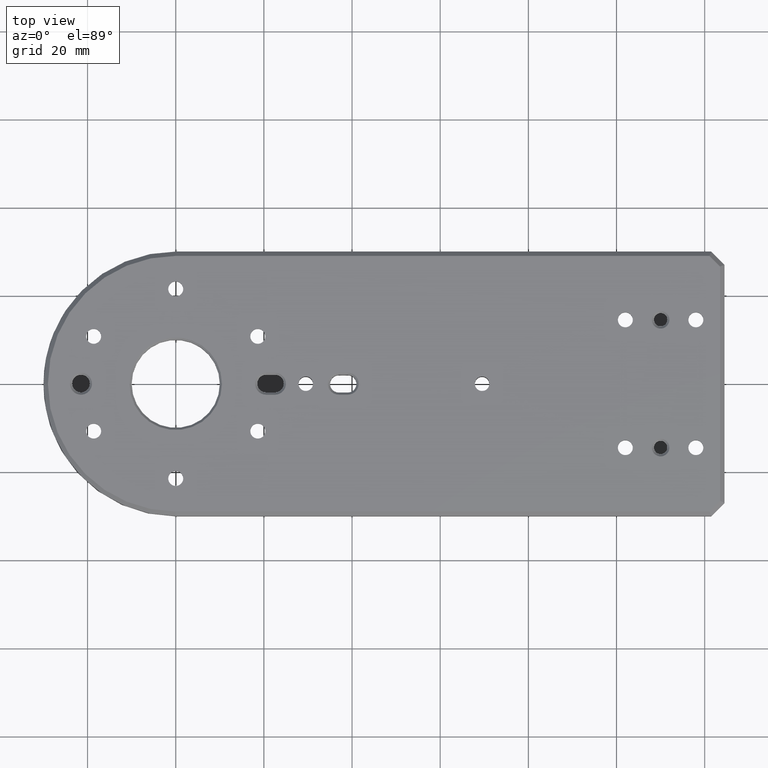
[diagram: clean part render]
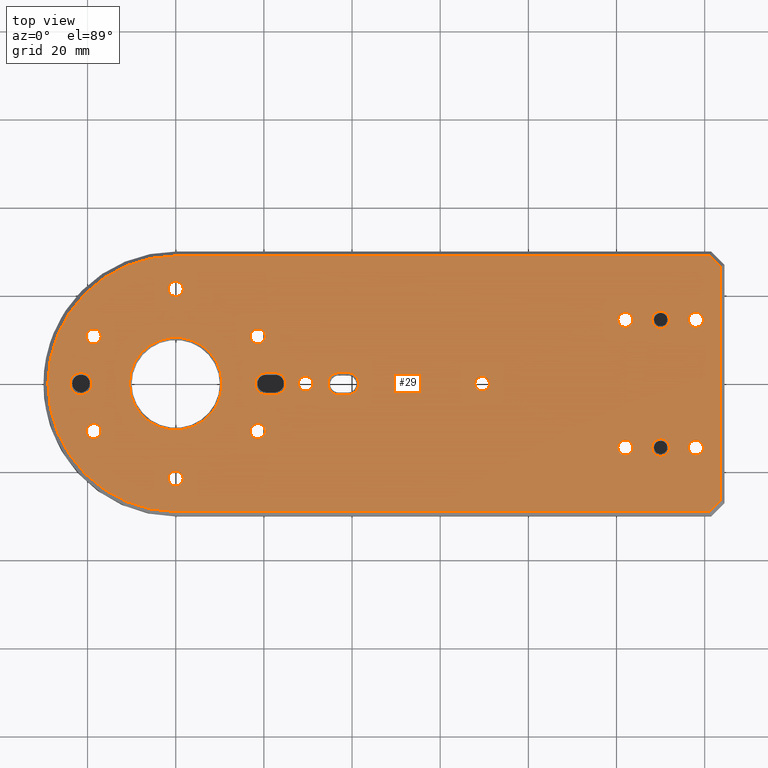
[diagram: same view with one face highlighted and labeled with its STEP entity id]
A machine part, top view. The second image highlights one B-rep face of the part: STEP entity #29.
In plain terms, the highlighted planar face has unit normal (0, 0, 1).
Its self-contained STEP definition (entity closure, byte-faithful):
#9 = CARTESIAN_POINT ( 'NONE',  ( -5.510910596163088767E-15, -28.99999999999999645, 0.0000000000000000000 ) ) ;
#17 = EDGE_CURVE ( 'NONE', #893, #3053, #1527, .T. ) ;
#19 = CIRCLE ( 'NONE', #2054, 1.699999999999996625 ) ;
#29 = ADVANCED_FACE ( 'NONE', ( #135, #154, #2661, #1273, #1864, #1802, #2129, #2921, #2357, #667, #2379, #3480, #3246, #412, #2642, #470, #2957, #1023, #1585 ), #982, .T. ) ;
#33 = CARTESIAN_POINT ( 'NONE',  ( 112.0000000000000000, -14.50000000000000000, 0.0000000000000000000 ) ) ;
#40 = CARTESIAN_POINT ( 'NONE',  ( 18.61954618136543615, -10.75000000000000000, 0.0000000000000000000 ) ) ;
#47 = AXIS2_PLACEMENT_3D ( 'NONE', #2413, #2662, #728 ) ;
#50 = VERTEX_POINT ( 'NONE', #1291 ) ;
#57 = CARTESIAN_POINT ( 'NONE',  ( 118.0000000000000000, 14.49999999999999822, 0.0000000000000000000 ) ) ;
#72 = LINE ( 'NONE', #1381, #1209 ) ;
#86 = VERTEX_POINT ( 'NONE', #1057 ) ;
#89 = CARTESIAN_POINT ( 'NONE',  ( 110.0000000000000142, 14.50000000000000000, 0.0000000000000000000 ) ) ;
#100 = DIRECTION ( 'NONE',  ( -1.000000000000000000, 0.0000000000000000000, 0.0000000000000000000 ) ) ;
#104 = CIRCLE ( 'NONE', #3253, 2.500000000000002220 ) ;
#109 = AXIS2_PLACEMENT_3D ( 'NONE', #89, #1185, #3226 ) ;
#111 = CARTESIAN_POINT ( 'NONE',  ( 1.734723475976807094E-15, -21.50000000000000355, 0.0000000000000000000 ) ) ;
#125 = ORIENTED_EDGE ( 'NONE', *, *, #1725, .T. ) ;
#128 = DIRECTION ( 'NONE',  ( 1.000000000000000000, 0.0000000000000000000, 0.0000000000000000000 ) ) ;
#129 = CIRCLE ( 'NONE', #362, 10.49999999999999467 ) ;
#130 = CARTESIAN_POINT ( 'NONE',  ( -10.49999999999999467, 1.285879139104720239E-15, 0.0000000000000000000 ) ) ;
#135 = FACE_BOUND ( 'NONE', #3269, .T. ) ;
#137 = EDGE_CURVE ( 'NONE', #1141, #1637, #1831, .T. ) ;
#144 = CARTESIAN_POINT ( 'NONE',  ( 123.5000000000000000, 26.58578643762689353, 0.0000000000000000000 ) ) ;
#146 = DIRECTION ( 'NONE',  ( -0.0000000000000000000, -0.0000000000000000000, -1.000000000000000000 ) ) ;
#154 = FACE_BOUND ( 'NONE', #2323, .T. ) ;
#156 = ORIENTED_EDGE ( 'NONE', *, *, #837, .T. ) ;
#158 = AXIS2_PLACEMENT_3D ( 'NONE', #2969, #3474, #3494 ) ;
#163 = VECTOR ( 'NONE', #1848, 1000.000000000000114 ) ;
#164 = EDGE_LOOP ( 'NONE', ( #874, #3340 ) ) ;
#170 = VERTEX_POINT ( 'NONE', #2198 ) ;
#171 = VERTEX_POINT ( 'NONE', #2792 ) ;
#185 = CARTESIAN_POINT ( 'NONE',  ( 123.5000000000000000, 0.0000000000000000000, 0.0000000000000000000 ) ) ;
#187 = CARTESIAN_POINT ( 'NONE',  ( 18.61954618136543615, -10.75000000000000000, 0.0000000000000000000 ) ) ;
#192 = VERTEX_POINT ( 'NONE', #1091 ) ;
#196 = ORIENTED_EDGE ( 'NONE', *, *, #3498, .T. ) ;
#205 = CARTESIAN_POINT ( 'NONE',  ( 38.99999999999998579, 2.500000000000000888, 0.0000000000000000000 ) ) ;
#206 = DIRECTION ( 'NONE',  ( -1.000000000000000000, 0.0000000000000000000, 0.0000000000000000000 ) ) ;
#208 = DIRECTION ( 'NONE',  ( -1.000000000000000000, 0.0000000000000000000, 0.0000000000000000000 ) ) ;
#225 = DIRECTION ( 'NONE',  ( -0.0000000000000000000, -0.0000000000000000000, -1.000000000000000000 ) ) ;
#243 = CARTESIAN_POINT ( 'NONE',  ( -1.699999999999998179, 21.50000000000000355, 0.0000000000000000000 ) ) ;
#247 = CARTESIAN_POINT ( 'NONE',  ( 103.6999999999999744, 14.49999999999999645, 0.0000000000000000000 ) ) ;
#249 = EDGE_CURVE ( 'NONE', #3035, #631, #19, .T. ) ;
#257 = CARTESIAN_POINT ( 'NONE',  ( 25.00000000000000000, -9.793179016008089977E-18, 0.0000000000000000000 ) ) ;
#267 = DIRECTION ( 'NONE',  ( -0.0000000000000000000, -0.0000000000000000000, -1.000000000000000000 ) ) ;
#282 = VERTEX_POINT ( 'NONE', #3080 ) ;
#307 = EDGE_CURVE ( 'NONE', #50, #1378, #903, .T. ) ;
#312 = CARTESIAN_POINT ( 'NONE',  ( 103.6999999999999744, -14.49999999999999645, 0.0000000000000000000 ) ) ;
#314 = VERTEX_POINT ( 'NONE', #9 ) ;
#325 = DIRECTION ( 'NONE',  ( 1.000000000000000000, 0.0000000000000000000, 0.0000000000000000000 ) ) ;
#331 = CARTESIAN_POINT ( 'NONE',  ( 37.00000000000002842, 0.0000000000000000000, 0.0000000000000000000 ) ) ;
#343 = DIRECTION ( 'NONE',  ( -1.000000000000000000, 0.0000000000000000000, 0.0000000000000000000 ) ) ;
#362 = AXIS2_PLACEMENT_3D ( 'NONE', #2617, #1234, #424 ) ;
#363 = CARTESIAN_POINT ( 'NONE',  ( 67.85000000000000853, 0.0000000000000000000, 0.0000000000000000000 ) ) ;
#379 = DIRECTION ( 'NONE',  ( -0.0000000000000000000, -0.0000000000000000000, -1.000000000000000000 ) ) ;
#380 = DIRECTION ( 'NONE',  ( -0.0000000000000000000, -0.0000000000000000000, -1.000000000000000000 ) ) ;
#383 = AXIS2_PLACEMENT_3D ( 'NONE', #2872, #379, #3510 ) ;
#387 = AXIS2_PLACEMENT_3D ( 'NONE', #1183, #943, #1987 ) ;
#392 = DIRECTION ( 'NONE',  ( -0.7071067811865491270, 0.7071067811865459074, 0.0000000000000000000 ) ) ;
#412 = FACE_BOUND ( 'NONE', #164, .T. ) ;
#414 = VERTEX_POINT ( 'NONE', #130 ) ;
#417 = ORIENTED_EDGE ( 'NONE', *, *, #2988, .T. ) ;
#420 = DIRECTION ( 'NONE',  ( 0.0000000000000000000, 0.0000000000000000000, 1.000000000000000000 ) ) ;
#424 = DIRECTION ( 'NONE',  ( 1.000000000000000000, 0.0000000000000000000, 0.0000000000000000000 ) ) ;
#432 = EDGE_CURVE ( 'NONE', #3151, #2040, #715, .T. ) ;
#434 = CARTESIAN_POINT ( 'NONE',  ( 119.6999999999999886, 14.49999999999999822, 0.0000000000000000000 ) ) ;
#450 = ORIENTED_EDGE ( 'NONE', *, *, #2138, .T. ) ;
#452 = AXIS2_PLACEMENT_3D ( 'NONE', #1539, #2367, #2083 ) ;
#459 = EDGE_CURVE ( 'NONE', #3327, #414, #129, .T. ) ;
#460 = AXIS2_PLACEMENT_3D ( 'NONE', #3369, #2826, #610 ) ;
#461 = DIRECTION ( 'NONE',  ( -1.000000000000000000, 0.0000000000000000000, 0.0000000000000000000 ) ) ;
#470 = FACE_BOUND ( 'NONE', #607, .T. ) ;
#501 = DIRECTION ( 'NONE',  ( 1.000000000000000000, 0.0000000000000000000, 0.0000000000000000000 ) ) ;
#503 = AXIS2_PLACEMENT_3D ( 'NONE', #2931, #420, #716 ) ;
#506 = VERTEX_POINT ( 'NONE', #2192 ) ;
#510 = DIRECTION ( 'NONE',  ( -0.0000000000000000000, -0.0000000000000000000, -1.000000000000000000 ) ) ;
#516 = ORIENTED_EDGE ( 'NONE', *, *, #17, .T. ) ;
#521 = ORIENTED_EDGE ( 'NONE', *, *, #2720, .T. ) ;
#525 = AXIS2_PLACEMENT_3D ( 'NONE', #1833, #1228, #970 ) ;
#541 = CARTESIAN_POINT ( 'NONE',  ( 1.699999999999998179, 21.50000000000000355, 0.0000000000000000000 ) ) ;
#581 = EDGE_CURVE ( 'NONE', #1637, #1141, #711, .T. ) ;
#594 = EDGE_CURVE ( 'NONE', #506, #1764, #2115, .T. ) ;
#607 = EDGE_LOOP ( 'NONE', ( #748, #2714 ) ) ;
#610 = DIRECTION ( 'NONE',  ( -1.000000000000000000, 0.0000000000000000000, 0.0000000000000000000 ) ) ;
#613 = ORIENTED_EDGE ( 'NONE', *, *, #808, .T. ) ;
#614 = DIRECTION ( 'NONE',  ( -0.0000000000000000000, -0.0000000000000000000, -1.000000000000000000 ) ) ;
#631 = VERTEX_POINT ( 'NONE', #3573 ) ;
#636 = CARTESIAN_POINT ( 'NONE',  ( 119.6999999999999886, -14.49999999999999822, 0.0000000000000000000 ) ) ;
#637 = EDGE_LOOP ( 'NONE', ( #613, #2997 ) ) ;
#667 = FACE_BOUND ( 'NONE', #1655, .T. ) ;
#681 = CIRCLE ( 'NONE', #2141, 1.699999999999998179 ) ;
#682 = EDGE_LOOP ( 'NONE', ( #3475, #156, #125, #2511, #521, #516, #3614 ) ) ;
#696 = DIRECTION ( 'NONE',  ( -0.0000000000000000000, -0.0000000000000000000, -1.000000000000000000 ) ) ;
#698 = ORIENTED_EDGE ( 'NONE', *, *, #3324, .T. ) ;
#702 = CARTESIAN_POINT ( 'NONE',  ( 20.49999999999999645, 2.500000000000000444, 0.0000000000000000000 ) ) ;
#711 = CIRCLE ( 'NONE', #1994, 1.699999999999993072 ) ;
#715 = CIRCLE ( 'NONE', #3225, 1.699999999999993072 ) ;
#716 = DIRECTION ( 'NONE',  ( 1.000000000000000000, 0.0000000000000000000, 0.0000000000000000000 ) ) ;
#720 = ORIENTED_EDGE ( 'NONE', *, *, #3390, .T. ) ;
#728 = DIRECTION ( 'NONE',  ( -1.000000000000000000, 0.0000000000000000000, 0.0000000000000000000 ) ) ;
#732 = LINE ( 'NONE', #1329, #163 ) ;
#744 = DIRECTION ( 'NONE',  ( 1.000000000000000000, 0.0000000000000000000, -0.0000000000000000000 ) ) ;
#747 = CIRCLE ( 'NONE', #1731, 1.699999999999996625 ) ;
#748 = ORIENTED_EDGE ( 'NONE', *, *, #432, .T. ) ;
#750 = CIRCLE ( 'NONE', #3371, 1.699999999999998179 ) ;
#754 = CIRCLE ( 'NONE', #460, 1.649999999999998579 ) ;
#765 = ORIENTED_EDGE ( 'NONE', *, *, #1593, .T. ) ;
#766 = DIRECTION ( 'NONE',  ( -1.000000000000000000, 0.0000000000000000000, 0.0000000000000000000 ) ) ;
#775 = DIRECTION ( 'NONE',  ( -0.0000000000000000000, -0.0000000000000000000, -1.000000000000000000 ) ) ;
#778 = EDGE_CURVE ( 'NONE', #3053, #2084, #3416, .T. ) ;
#799 = VERTEX_POINT ( 'NONE', #1155 ) ;
#802 = VERTEX_POINT ( 'NONE', #952 ) ;
#807 = AXIS2_PLACEMENT_3D ( 'NONE', #40, #1423, #1980 ) ;
#808 = EDGE_CURVE ( 'NONE', #802, #2543, #3539, .T. ) ;
#810 = CIRCLE ( 'NONE', #47, 1.699999999999996625 ) ;
#818 = EDGE_LOOP ( 'NONE', ( #3413, #2858 ) ) ;
#831 = DIRECTION ( 'NONE',  ( -1.000000000000000000, 0.0000000000000000000, 0.0000000000000000000 ) ) ;
#837 = EDGE_CURVE ( 'NONE', #171, #314, #2076, .T. ) ;
#847 = CARTESIAN_POINT ( 'NONE',  ( -18.99999999999999645, 0.0000000000000000000, 0.0000000000000000000 ) ) ;
#850 = DIRECTION ( 'NONE',  ( -1.000000000000000000, 0.0000000000000000000, 0.0000000000000000000 ) ) ;
#851 = CARTESIAN_POINT ( 'NONE',  ( -18.61954618136542550, 10.75000000000000178, 0.0000000000000000000 ) ) ;
#852 = ORIENTED_EDGE ( 'NONE', *, *, #2588, .T. ) ;
#871 = CARTESIAN_POINT ( 'NONE',  ( 37.00000000000002842, -2.500000000000000888, 0.0000000000000000000 ) ) ;
#874 = ORIENTED_EDGE ( 'NONE', *, *, #1309, .T. ) ;
#875 = VERTEX_POINT ( 'NONE', #363 ) ;
#893 = VERTEX_POINT ( 'NONE', #144 ) ;
#903 = LINE ( 'NONE', #871, #1948 ) ;
#911 = VERTEX_POINT ( 'NONE', #3204 ) ;
#917 = CARTESIAN_POINT ( 'NONE',  ( 0.0000000000000000000, 28.99999999999999645, 0.0000000000000000000 ) ) ;
#924 = CIRCLE ( 'NONE', #1330, 1.699999999999993072 ) ;
#935 = DIRECTION ( 'NONE',  ( 1.000000000000000000, 0.0000000000000000000, 0.0000000000000000000 ) ) ;
#943 = DIRECTION ( 'NONE',  ( -0.0000000000000000000, -0.0000000000000000000, -1.000000000000000000 ) ) ;
#952 = CARTESIAN_POINT ( 'NONE',  ( 116.2999999999999972, 14.49999999999999822, 0.0000000000000000000 ) ) ;
#962 = CARTESIAN_POINT ( 'NONE',  ( 22.50000000000000000, -9.793179016008089977E-18, 0.0000000000000000000 ) ) ;
#964 = ORIENTED_EDGE ( 'NONE', *, *, #3233, .T. ) ;
#970 = DIRECTION ( 'NONE',  ( -1.000000000000000000, 0.0000000000000000000, 0.0000000000000000000 ) ) ;
#980 = CIRCLE ( 'NONE', #1500, 28.99999999999999645 ) ;
#982 = PLANE ( 'NONE',  #1188 ) ;
#997 = DIRECTION ( 'NONE',  ( 1.000000000000000000, 0.0000000000000000000, 0.0000000000000000000 ) ) ;
#1003 = CARTESIAN_POINT ( 'NONE',  ( 75.04289321881313413, 75.04289321881348940, 0.0000000000000000000 ) ) ;
#1023 = FACE_BOUND ( 'NONE', #2161, .T. ) ;
#1047 = CARTESIAN_POINT ( 'NONE',  ( -18.61954618136542905, -10.75000000000001066, 0.0000000000000000000 ) ) ;
#1048 = VERTEX_POINT ( 'NONE', #3238 ) ;
#1052 = CARTESIAN_POINT ( 'NONE',  ( 38.99999999999998579, 3.673940397441985912E-16, 0.0000000000000000000 ) ) ;
#1054 = EDGE_LOOP ( 'NONE', ( #2068, #765 ) ) ;
#1057 = CARTESIAN_POINT ( 'NONE',  ( -24.00000000000000000, 3.061616997868386099E-16, 0.0000000000000000000 ) ) ;
#1058 = CIRCLE ( 'NONE', #2329, 10.49999999999999467 ) ;
#1061 = CIRCLE ( 'NONE', #3450, 1.699999999999993072 ) ;
#1065 = EDGE_CURVE ( 'NONE', #2868, #2270, #681, .T. ) ;
#1069 = DIRECTION ( 'NONE',  ( -1.000000000000000000, 0.0000000000000000000, 0.0000000000000000000 ) ) ;
#1075 = DIRECTION ( 'NONE',  ( 1.000000000000000000, 0.0000000000000000000, 0.0000000000000000000 ) ) ;
#1082 = CARTESIAN_POINT ( 'NONE',  ( 101.9999999999999858, -14.49999999999999645, 0.0000000000000000000 ) ) ;
#1088 = EDGE_CURVE ( 'NONE', #3265, #170, #1617, .T. ) ;
#1091 = CARTESIAN_POINT ( 'NONE',  ( 108.0000000000000284, 14.50000000000000000, 0.0000000000000000000 ) ) ;
#1099 = AXIS2_PLACEMENT_3D ( 'NONE', #962, #1292, #501 ) ;
#1107 = CARTESIAN_POINT ( 'NONE',  ( 100.2999999999999829, -14.49999999999999645, 0.0000000000000000000 ) ) ;
#1117 = AXIS2_PLACEMENT_3D ( 'NONE', #3239, #696, #935 ) ;
#1120 = EDGE_CURVE ( 'NONE', #875, #2070, #2602, .T. ) ;
#1129 = VERTEX_POINT ( 'NONE', #1198 ) ;
#1141 = VERTEX_POINT ( 'NONE', #636 ) ;
#1148 = EDGE_CURVE ( 'NONE', #2220, #1512, #1963, .T. ) ;
#1151 = AXIS2_PLACEMENT_3D ( 'NONE', #331, #2244, #1444 ) ;
#1155 = CARTESIAN_POINT ( 'NONE',  ( 100.2999999999999829, 14.49999999999999645, 0.0000000000000000000 ) ) ;
#1163 = ORIENTED_EDGE ( 'NONE', *, *, #2765, .T. ) ;
#1165 = DIRECTION ( 'NONE',  ( -0.0000000000000000000, -0.0000000000000000000, -1.000000000000000000 ) ) ;
#1183 = CARTESIAN_POINT ( 'NONE',  ( 29.50000000000000711, 0.0000000000000000000, 0.0000000000000000000 ) ) ;
#1185 = DIRECTION ( 'NONE',  ( -0.0000000000000000000, -0.0000000000000000000, -1.000000000000000000 ) ) ;
#1188 = AXIS2_PLACEMENT_3D ( 'NONE', #3230, #2897, #744 ) ;
#1198 = CARTESIAN_POINT ( 'NONE',  ( 112.0000000000000000, 14.50000000000000000, 0.0000000000000000000 ) ) ;
#1199 = ORIENTED_EDGE ( 'NONE', *, *, #1822, .T. ) ;
#1209 = VECTOR ( 'NONE', #1724, 1000.000000000000000 ) ;
#1212 = VECTOR ( 'NONE', #997, 1000.000000000000000 ) ;
#1213 = CIRCLE ( 'NONE', #1446, 1.699999999999998179 ) ;
#1228 = DIRECTION ( 'NONE',  ( -0.0000000000000000000, -0.0000000000000000000, -1.000000000000000000 ) ) ;
#1229 = DIRECTION ( 'NONE',  ( 1.000000000000000000, 0.0000000000000000000, 0.0000000000000000000 ) ) ;
#1234 = DIRECTION ( 'NONE',  ( -0.0000000000000000000, -0.0000000000000000000, -1.000000000000000000 ) ) ;
#1238 = CARTESIAN_POINT ( 'NONE',  ( 1.699999999999999956, -21.50000000000000355, 0.0000000000000000000 ) ) ;
#1243 = VERTEX_POINT ( 'NONE', #2358 ) ;
#1252 = CARTESIAN_POINT ( 'NONE',  ( 101.9999999999999858, -14.49999999999999645, 0.0000000000000000000 ) ) ;
#1266 = CARTESIAN_POINT ( 'NONE',  ( 0.0000000000000000000, -28.99999999999999645, 0.0000000000000000000 ) ) ;
#1273 = FACE_BOUND ( 'NONE', #2361, .T. ) ;
#1282 = CARTESIAN_POINT ( 'NONE',  ( 0.0000000000000000000, 0.0000000000000000000, 0.0000000000000000000 ) ) ;
#1291 = CARTESIAN_POINT ( 'NONE',  ( 38.99999999999998579, -2.500000000000000444, 0.0000000000000000000 ) ) ;
#1292 = DIRECTION ( 'NONE',  ( -0.0000000000000000000, -0.0000000000000000000, -1.000000000000000000 ) ) ;
#1304 = ORIENTED_EDGE ( 'NONE', *, *, #3286, .T. ) ;
#1309 = EDGE_CURVE ( 'NONE', #911, #2338, #810, .T. ) ;
#1318 = DIRECTION ( 'NONE',  ( -1.000000000000000000, 0.0000000000000000000, 0.0000000000000000000 ) ) ;
#1321 = CARTESIAN_POINT ( 'NONE',  ( 118.0000000000000000, -14.49999999999999822, 0.0000000000000000000 ) ) ;
#1323 = CIRCLE ( 'NONE', #2903, 1.999999999999988010 ) ;
#1326 = AXIS2_PLACEMENT_3D ( 'NONE', #1082, #3306, #1670 ) ;
#1327 = VERTEX_POINT ( 'NONE', #1238 ) ;
#1329 = CARTESIAN_POINT ( 'NONE',  ( 75.04289321881400099, -75.04289321881331887, 0.0000000000000000000 ) ) ;
#1330 = AXIS2_PLACEMENT_3D ( 'NONE', #1629, #1372, #831 ) ;
#1331 = EDGE_CURVE ( 'NONE', #2678, #282, #1384, .T. ) ;
#1344 = CIRCLE ( 'NONE', #525, 1.699999999999996625 ) ;
#1345 = CARTESIAN_POINT ( 'NONE',  ( 37.00000000000002842, -2.500000000000000888, 0.0000000000000000000 ) ) ;
#1347 = AXIS2_PLACEMENT_3D ( 'NONE', #1436, #3094, #325 ) ;
#1361 = EDGE_CURVE ( 'NONE', #2338, #911, #2256, .T. ) ;
#1365 = EDGE_LOOP ( 'NONE', ( #1910, #2828 ) ) ;
#1372 = DIRECTION ( 'NONE',  ( -0.0000000000000000000, -0.0000000000000000000, -1.000000000000000000 ) ) ;
#1373 = DIRECTION ( 'NONE',  ( -0.0000000000000000000, -0.0000000000000000000, -1.000000000000000000 ) ) ;
#1378 = VERTEX_POINT ( 'NONE', #1345 ) ;
#1380 = VERTEX_POINT ( 'NONE', #3561 ) ;
#1381 = CARTESIAN_POINT ( 'NONE',  ( 38.99999999999998579, 2.500000000000000888, 0.0000000000000000000 ) ) ;
#1384 = CIRCLE ( 'NONE', #1099, 2.500000000000002220 ) ;
#1385 = CIRCLE ( 'NONE', #452, 1.649999999999998579 ) ;
#1397 = EDGE_CURVE ( 'NONE', #2084, #171, #980, .T. ) ;
#1423 = DIRECTION ( 'NONE',  ( -0.0000000000000000000, -0.0000000000000000000, -1.000000000000000000 ) ) ;
#1434 = VECTOR ( 'NONE', #3398, 1000.000000000000000 ) ;
#1436 = CARTESIAN_POINT ( 'NONE',  ( -21.50000000000000000, 0.0000000000000000000, 0.0000000000000000000 ) ) ;
#1444 = DIRECTION ( 'NONE',  ( 1.000000000000000000, 0.0000000000000000000, 0.0000000000000000000 ) ) ;
#1446 = AXIS2_PLACEMENT_3D ( 'NONE', #2229, #1373, #1318 ) ;
#1465 = CARTESIAN_POINT ( 'NONE',  ( -18.61954618136542905, -10.75000000000001066, 0.0000000000000000000 ) ) ;
#1500 = AXIS2_PLACEMENT_3D ( 'NONE', #3063, #3579, #1075 ) ;
#1512 = VERTEX_POINT ( 'NONE', #2578 ) ;
#1516 = EDGE_CURVE ( 'NONE', #1720, #1762, #1757, .T. ) ;
#1527 = LINE ( 'NONE', #1003, #2519 ) ;
#1539 = CARTESIAN_POINT ( 'NONE',  ( 29.50000000000000711, 0.0000000000000000000, 0.0000000000000000000 ) ) ;
#1544 = ORIENTED_EDGE ( 'NONE', *, *, #594, .T. ) ;
#1579 = CARTESIAN_POINT ( 'NONE',  ( 18.61954618136542905, 10.75000000000000000, 0.0000000000000000000 ) ) ;
#1585 = FACE_BOUND ( 'NONE', #637, .T. ) ;
#1593 = EDGE_CURVE ( 'NONE', #2070, #875, #754, .T. ) ;
#1608 = DIRECTION ( 'NONE',  ( -0.0000000000000000000, -0.0000000000000000000, -1.000000000000000000 ) ) ;
#1617 = CIRCLE ( 'NONE', #387, 1.649999999999998579 ) ;
#1625 = CIRCLE ( 'NONE', #3319, 2.500000000000002220 ) ;
#1629 = CARTESIAN_POINT ( 'NONE',  ( 101.9999999999999858, 14.49999999999999645, 0.0000000000000000000 ) ) ;
#1637 = VERTEX_POINT ( 'NONE', #3532 ) ;
#1655 = EDGE_LOOP ( 'NONE', ( #3179, #1163 ) ) ;
#1661 = ORIENTED_EDGE ( 'NONE', *, *, #307, .T. ) ;
#1666 = AXIS2_PLACEMENT_3D ( 'NONE', #2349, #146, #128 ) ;
#1670 = DIRECTION ( 'NONE',  ( -1.000000000000000000, 0.0000000000000000000, 0.0000000000000000000 ) ) ;
#1674 = VECTOR ( 'NONE', #2539, 1000.000000000000000 ) ;
#1676 = DIRECTION ( 'NONE',  ( -0.0000000000000000000, -0.0000000000000000000, -1.000000000000000000 ) ) ;
#1720 = VERTEX_POINT ( 'NONE', #702 ) ;
#1722 = DIRECTION ( 'NONE',  ( 1.000000000000000000, 0.0000000000000000000, 0.0000000000000000000 ) ) ;
#1724 = DIRECTION ( 'NONE',  ( 1.000000000000000000, 2.168404344971052255E-16, 0.0000000000000000000 ) ) ;
#1725 = EDGE_CURVE ( 'NONE', #314, #2827, #1840, .T. ) ;
#1726 = EDGE_LOOP ( 'NONE', ( #1304, #3562, #2363, #1199, #1661 ) ) ;
#1731 = AXIS2_PLACEMENT_3D ( 'NONE', #1047, #225, #206 ) ;
#1757 = LINE ( 'NONE', #2877, #1674 ) ;
#1762 = VERTEX_POINT ( 'NONE', #1942 ) ;
#1764 = VERTEX_POINT ( 'NONE', #3025 ) ;
#1768 = EDGE_LOOP ( 'NONE', ( #2308, #3591 ) ) ;
#1794 = EDGE_CURVE ( 'NONE', #3136, #799, #924, .T. ) ;
#1798 = AXIS2_PLACEMENT_3D ( 'NONE', #3044, #2214, #2468 ) ;
#1802 = FACE_BOUND ( 'NONE', #1726, .T. ) ;
#1822 = EDGE_CURVE ( 'NONE', #1512, #50, #1625, .T. ) ;
#1831 = CIRCLE ( 'NONE', #2879, 1.699999999999993072 ) ;
#1833 = CARTESIAN_POINT ( 'NONE',  ( 18.61954618136542905, 10.75000000000000000, 0.0000000000000000000 ) ) ;
#1840 = LINE ( 'NONE', #1266, #1212 ) ;
#1848 = DIRECTION ( 'NONE',  ( 0.7071067811865441310, 0.7071067811865507924, 0.0000000000000000000 ) ) ;
#1855 = CIRCLE ( 'NONE', #1666, 2.500000000000002220 ) ;
#1864 = FACE_BOUND ( 'NONE', #2389, .T. ) ;
#1874 = DIRECTION ( 'NONE',  ( 1.000000000000000000, 0.0000000000000000000, 0.0000000000000000000 ) ) ;
#1876 = ORIENTED_EDGE ( 'NONE', *, *, #2470, .T. ) ;
#1889 = CARTESIAN_POINT ( 'NONE',  ( -21.50000000000000000, 0.0000000000000000000, 0.0000000000000000000 ) ) ;
#1890 = ORIENTED_EDGE ( 'NONE', *, *, #2852, .T. ) ;
#1906 = VERTEX_POINT ( 'NONE', #3096 ) ;
#1910 = ORIENTED_EDGE ( 'NONE', *, *, #581, .T. ) ;
#1926 = CARTESIAN_POINT ( 'NONE',  ( 121.0857864376268793, 28.99999999999999645, 0.0000000000000000000 ) ) ;
#1942 = CARTESIAN_POINT ( 'NONE',  ( 22.50000000000000000, 2.500000000000000888, 0.0000000000000000000 ) ) ;
#1948 = VECTOR ( 'NONE', #2837, 1000.000000000000000 ) ;
#1950 = CARTESIAN_POINT ( 'NONE',  ( 0.0000000000000000000, 21.50000000000000355, 0.0000000000000000000 ) ) ;
#1963 = CIRCLE ( 'NONE', #3311, 2.500000000000002220 ) ;
#1968 = DIRECTION ( 'NONE',  ( -1.000000000000000000, -2.168404344971006896E-16, 0.0000000000000000000 ) ) ;
#1980 = DIRECTION ( 'NONE',  ( -1.000000000000000000, 0.0000000000000000000, 0.0000000000000000000 ) ) ;
#1987 = DIRECTION ( 'NONE',  ( -1.000000000000000000, 0.0000000000000000000, 0.0000000000000000000 ) ) ;
#1994 = AXIS2_PLACEMENT_3D ( 'NONE', #2144, #775, #1069 ) ;
#2003 = CARTESIAN_POINT ( 'NONE',  ( 38.99999999999998579, 3.673940397441985912E-16, 0.0000000000000000000 ) ) ;
#2019 = CARTESIAN_POINT ( 'NONE',  ( 37.00000000000002842, 2.500000000000000444, 0.0000000000000000000 ) ) ;
#2026 = CIRCLE ( 'NONE', #1151, 2.500000000000002220 ) ;
#2040 = VERTEX_POINT ( 'NONE', #312 ) ;
#2043 = DIRECTION ( 'NONE',  ( -0.0000000000000000000, -0.0000000000000000000, -1.000000000000000000 ) ) ;
#2054 = AXIS2_PLACEMENT_3D ( 'NONE', #1465, #3353, #850 ) ;
#2061 = CARTESIAN_POINT ( 'NONE',  ( 10.49999999999999467, 0.0000000000000000000, 0.0000000000000000000 ) ) ;
#2062 = EDGE_CURVE ( 'NONE', #414, #3327, #1058, .T. ) ;
#2068 = ORIENTED_EDGE ( 'NONE', *, *, #1120, .T. ) ;
#2070 = VERTEX_POINT ( 'NONE', #3455 ) ;
#2076 = CIRCLE ( 'NONE', #503, 28.99999999999999645 ) ;
#2083 = DIRECTION ( 'NONE',  ( -1.000000000000000000, 0.0000000000000000000, 0.0000000000000000000 ) ) ;
#2084 = VERTEX_POINT ( 'NONE', #2889 ) ;
#2115 = CIRCLE ( 'NONE', #2226, 1.699999999999996625 ) ;
#2116 = EDGE_CURVE ( 'NONE', #2763, #1048, #3566, .T. ) ;
#2129 = FACE_OUTER_BOUND ( 'NONE', #682, .T. ) ;
#2134 = DIRECTION ( 'NONE',  ( -0.0000000000000000000, 1.000000000000000000, 0.0000000000000000000 ) ) ;
#2138 = EDGE_CURVE ( 'NONE', #1764, #506, #1344, .T. ) ;
#2141 = AXIS2_PLACEMENT_3D ( 'NONE', #1950, #2401, #461 ) ;
#2144 = CARTESIAN_POINT ( 'NONE',  ( 118.0000000000000000, -14.49999999999999822, 0.0000000000000000000 ) ) ;
#2154 = ORIENTED_EDGE ( 'NONE', *, *, #249, .T. ) ;
#2161 = EDGE_LOOP ( 'NONE', ( #698, #2396 ) ) ;
#2163 = DIRECTION ( 'NONE',  ( -0.0000000000000000000, -0.0000000000000000000, -1.000000000000000000 ) ) ;
#2182 = DIRECTION ( 'NONE',  ( -0.0000000000000000000, -0.0000000000000000000, -1.000000000000000000 ) ) ;
#2189 = EDGE_CURVE ( 'NONE', #2255, #1380, #2505, .T. ) ;
#2192 = CARTESIAN_POINT ( 'NONE',  ( 20.31954618136542834, 10.75000000000000000, 0.0000000000000000000 ) ) ;
#2198 = CARTESIAN_POINT ( 'NONE',  ( 27.85000000000000497, 0.0000000000000000000, 0.0000000000000000000 ) ) ;
#2214 = DIRECTION ( 'NONE',  ( -0.0000000000000000000, -0.0000000000000000000, -1.000000000000000000 ) ) ;
#2220 = VERTEX_POINT ( 'NONE', #205 ) ;
#2226 = AXIS2_PLACEMENT_3D ( 'NONE', #1579, #2694, #208 ) ;
#2229 = CARTESIAN_POINT ( 'NONE',  ( 0.0000000000000000000, 21.50000000000000355, 0.0000000000000000000 ) ) ;
#2244 = DIRECTION ( 'NONE',  ( -0.0000000000000000000, -0.0000000000000000000, -1.000000000000000000 ) ) ;
#2254 = LINE ( 'NONE', #2783, #2435 ) ;
#2255 = VERTEX_POINT ( 'NONE', #3001 ) ;
#2256 = CIRCLE ( 'NONE', #2311, 1.699999999999996625 ) ;
#2259 = CARTESIAN_POINT ( 'NONE',  ( -1.699999999999996403, -21.50000000000000355, 0.0000000000000000000 ) ) ;
#2270 = VERTEX_POINT ( 'NONE', #243 ) ;
#2308 = ORIENTED_EDGE ( 'NONE', *, *, #459, .T. ) ;
#2310 = DIRECTION ( 'NONE',  ( 1.000000000000000000, 0.0000000000000000000, 0.0000000000000000000 ) ) ;
#2311 = AXIS2_PLACEMENT_3D ( 'NONE', #851, #267, #3033 ) ;
#2312 = CIRCLE ( 'NONE', #1326, 1.699999999999993072 ) ;
#2319 = CIRCLE ( 'NONE', #1798, 1.999999999999988010 ) ;
#2323 = EDGE_LOOP ( 'NONE', ( #3036, #3352, #1890, #852, #2537 ) ) ;
#2324 = CARTESIAN_POINT ( 'NONE',  ( 69.50000000000000000, 0.0000000000000000000, 0.0000000000000000000 ) ) ;
#2329 = AXIS2_PLACEMENT_3D ( 'NONE', #1282, #380, #3438 ) ;
#2338 = VERTEX_POINT ( 'NONE', #2690 ) ;
#2349 = CARTESIAN_POINT ( 'NONE',  ( 22.50000000000000000, -9.793179016008089977E-18, 0.0000000000000000000 ) ) ;
#2357 = FACE_BOUND ( 'NONE', #1054, .T. ) ;
#2358 = CARTESIAN_POINT ( 'NONE',  ( 20.49999999999999645, -2.500000000000001332, 0.0000000000000000000 ) ) ;
#2361 = EDGE_LOOP ( 'NONE', ( #2887, #3411 ) ) ;
#2363 = ORIENTED_EDGE ( 'NONE', *, *, #1148, .T. ) ;
#2367 = DIRECTION ( 'NONE',  ( -0.0000000000000000000, -0.0000000000000000000, -1.000000000000000000 ) ) ;
#2379 = FACE_BOUND ( 'NONE', #3446, .T. ) ;
#2389 = EDGE_LOOP ( 'NONE', ( #720, #417 ) ) ;
#2396 = ORIENTED_EDGE ( 'NONE', *, *, #1794, .T. ) ;
#2400 = EDGE_CURVE ( 'NONE', #2543, #802, #1061, .T. ) ;
#2401 = DIRECTION ( 'NONE',  ( -0.0000000000000000000, -0.0000000000000000000, -1.000000000000000000 ) ) ;
#2402 = DIRECTION ( 'NONE',  ( -1.000000000000000000, 0.0000000000000000000, 0.0000000000000000000 ) ) ;
#2413 = CARTESIAN_POINT ( 'NONE',  ( -18.61954618136542550, 10.75000000000000178, 0.0000000000000000000 ) ) ;
#2435 = VECTOR ( 'NONE', #1968, 1000.000000000000000 ) ;
#2468 = DIRECTION ( 'NONE',  ( 1.000000000000000000, 0.0000000000000000000, 0.0000000000000000000 ) ) ;
#2469 = VERTEX_POINT ( 'NONE', #2259 ) ;
#2470 = EDGE_CURVE ( 'NONE', #86, #3103, #2928, .T. ) ;
#2481 = DIRECTION ( 'NONE',  ( 1.000000000000000000, 0.0000000000000000000, 0.0000000000000000000 ) ) ;
#2497 = CIRCLE ( 'NONE', #109, 1.999999999999988010 ) ;
#2498 = DIRECTION ( 'NONE',  ( -1.000000000000000000, 0.0000000000000000000, 0.0000000000000000000 ) ) ;
#2505 = CIRCLE ( 'NONE', #3445, 1.699999999999996625 ) ;
#2510 = DIRECTION ( 'NONE',  ( -0.0000000000000000000, -0.0000000000000000000, -1.000000000000000000 ) ) ;
#2511 = ORIENTED_EDGE ( 'NONE', *, *, #2715, .T. ) ;
#2519 = VECTOR ( 'NONE', #392, 1000.000000000000114 ) ;
#2536 = CARTESIAN_POINT ( 'NONE',  ( 31.15000000000000568, 2.020667218593131029E-16, 0.0000000000000000000 ) ) ;
#2537 = ORIENTED_EDGE ( 'NONE', *, *, #1516, .T. ) ;
#2539 = DIRECTION ( 'NONE',  ( 1.000000000000000000, 2.168404344971006896E-16, 0.0000000000000000000 ) ) ;
#2543 = VERTEX_POINT ( 'NONE', #434 ) ;
#2569 = ORIENTED_EDGE ( 'NONE', *, *, #1088, .T. ) ;
#2578 = CARTESIAN_POINT ( 'NONE',  ( 41.49999999999998579, 3.673940397441985912E-16, 0.0000000000000000000 ) ) ;
#2582 = ORIENTED_EDGE ( 'NONE', *, *, #3362, .T. ) ;
#2588 = EDGE_CURVE ( 'NONE', #1243, #1720, #104, .T. ) ;
#2589 = CARTESIAN_POINT ( 'NONE',  ( 20.49999999999999645, -6.221165785896851866E-16, 0.0000000000000000000 ) ) ;
#2602 = CIRCLE ( 'NONE', #3544, 1.649999999999998579 ) ;
#2603 = CIRCLE ( 'NONE', #807, 1.699999999999996625 ) ;
#2609 = EDGE_CURVE ( 'NONE', #2469, #1327, #2850, .T. ) ;
#2617 = CARTESIAN_POINT ( 'NONE',  ( 0.0000000000000000000, 0.0000000000000000000, 0.0000000000000000000 ) ) ;
#2642 = FACE_BOUND ( 'NONE', #3090, .T. ) ;
#2661 = FACE_BOUND ( 'NONE', #1768, .T. ) ;
#2662 = DIRECTION ( 'NONE',  ( -0.0000000000000000000, -0.0000000000000000000, -1.000000000000000000 ) ) ;
#2678 = VERTEX_POINT ( 'NONE', #257 ) ;
#2690 = CARTESIAN_POINT ( 'NONE',  ( -16.91954618136542976, 10.75000000000000178, 0.0000000000000000000 ) ) ;
#2694 = DIRECTION ( 'NONE',  ( -0.0000000000000000000, -0.0000000000000000000, -1.000000000000000000 ) ) ;
#2714 = ORIENTED_EDGE ( 'NONE', *, *, #2755, .T. ) ;
#2715 = EDGE_CURVE ( 'NONE', #2827, #1906, #732, .T. ) ;
#2720 = EDGE_CURVE ( 'NONE', #1906, #893, #2964, .T. ) ;
#2755 = EDGE_CURVE ( 'NONE', #2040, #3151, #2312, .T. ) ;
#2763 = VERTEX_POINT ( 'NONE', #33 ) ;
#2765 = EDGE_CURVE ( 'NONE', #1327, #2469, #750, .T. ) ;
#2782 = ORIENTED_EDGE ( 'NONE', *, *, #2189, .T. ) ;
#2783 = CARTESIAN_POINT ( 'NONE',  ( 20.49999999999999645, -2.500000000000001332, 0.0000000000000000000 ) ) ;
#2785 = EDGE_CURVE ( 'NONE', #2963, #2220, #72, .T. ) ;
#2792 = CARTESIAN_POINT ( 'NONE',  ( -28.99999999999999645, 0.0000000000000000000, 0.0000000000000000000 ) ) ;
#2814 = EDGE_LOOP ( 'NONE', ( #2582, #2569 ) ) ;
#2826 = DIRECTION ( 'NONE',  ( -0.0000000000000000000, -0.0000000000000000000, -1.000000000000000000 ) ) ;
#2827 = VERTEX_POINT ( 'NONE', #3106 ) ;
#2828 = ORIENTED_EDGE ( 'NONE', *, *, #137, .T. ) ;
#2837 = DIRECTION ( 'NONE',  ( -1.000000000000000000, -2.168404344971052255E-16, 0.0000000000000000000 ) ) ;
#2850 = CIRCLE ( 'NONE', #2971, 1.699999999999998179 ) ;
#2852 = EDGE_CURVE ( 'NONE', #282, #1243, #2254, .T. ) ;
#2858 = ORIENTED_EDGE ( 'NONE', *, *, #1065, .T. ) ;
#2868 = VERTEX_POINT ( 'NONE', #541 ) ;
#2872 = CARTESIAN_POINT ( 'NONE',  ( 118.0000000000000000, 14.49999999999999822, 0.0000000000000000000 ) ) ;
#2877 = CARTESIAN_POINT ( 'NONE',  ( 22.50000000000000000, 2.500000000000000888, 0.0000000000000000000 ) ) ;
#2879 = AXIS2_PLACEMENT_3D ( 'NONE', #1321, #2182, #766 ) ;
#2887 = ORIENTED_EDGE ( 'NONE', *, *, #2116, .T. ) ;
#2889 = CARTESIAN_POINT ( 'NONE',  ( 1.775737858763662015E-15, 28.99999999999999645, 0.0000000000000000000 ) ) ;
#2897 = DIRECTION ( 'NONE',  ( 0.0000000000000000000, 0.0000000000000000000, 1.000000000000000000 ) ) ;
#2903 = AXIS2_PLACEMENT_3D ( 'NONE', #2950, #2913, #1229 ) ;
#2905 = DIRECTION ( 'NONE',  ( -0.0000000000000000000, -0.0000000000000000000, -1.000000000000000000 ) ) ;
#2913 = DIRECTION ( 'NONE',  ( -0.0000000000000000000, -0.0000000000000000000, -1.000000000000000000 ) ) ;
#2921 = FACE_BOUND ( 'NONE', #2814, .T. ) ;
#2928 = CIRCLE ( 'NONE', #1347, 2.500000000000002220 ) ;
#2931 = CARTESIAN_POINT ( 'NONE',  ( 0.0000000000000000000, 0.0000000000000000000, 0.0000000000000000000 ) ) ;
#2950 = CARTESIAN_POINT ( 'NONE',  ( 110.0000000000000142, 14.50000000000000000, 0.0000000000000000000 ) ) ;
#2957 = FACE_BOUND ( 'NONE', #1365, .T. ) ;
#2963 = VERTEX_POINT ( 'NONE', #2019 ) ;
#2964 = LINE ( 'NONE', #185, #3433 ) ;
#2969 = CARTESIAN_POINT ( 'NONE',  ( 101.9999999999999858, 14.49999999999999645, 0.0000000000000000000 ) ) ;
#2971 = AXIS2_PLACEMENT_3D ( 'NONE', #111, #2905, #3196 ) ;
#2988 = EDGE_CURVE ( 'NONE', #192, #1129, #2497, .T. ) ;
#2997 = ORIENTED_EDGE ( 'NONE', *, *, #2400, .T. ) ;
#3001 = CARTESIAN_POINT ( 'NONE',  ( 16.91954618136544042, -10.75000000000000000, 0.0000000000000000000 ) ) ;
#3018 = EDGE_CURVE ( 'NONE', #1048, #2763, #2319, .T. ) ;
#3022 = AXIS2_PLACEMENT_3D ( 'NONE', #1889, #1608, #1874 ) ;
#3025 = CARTESIAN_POINT ( 'NONE',  ( 16.91954618136543331, 10.75000000000000000, 0.0000000000000000000 ) ) ;
#3033 = DIRECTION ( 'NONE',  ( -1.000000000000000000, 0.0000000000000000000, 0.0000000000000000000 ) ) ;
#3035 = VERTEX_POINT ( 'NONE', #3335 ) ;
#3036 = ORIENTED_EDGE ( 'NONE', *, *, #3344, .T. ) ;
#3044 = CARTESIAN_POINT ( 'NONE',  ( 110.0000000000000142, -14.50000000000000000, 0.0000000000000000000 ) ) ;
#3053 = VERTEX_POINT ( 'NONE', #1926 ) ;
#3063 = CARTESIAN_POINT ( 'NONE',  ( 0.0000000000000000000, 0.0000000000000000000, 0.0000000000000000000 ) ) ;
#3078 = EDGE_CURVE ( 'NONE', #2270, #2868, #1213, .T. ) ;
#3080 = CARTESIAN_POINT ( 'NONE',  ( 22.50000000000000000, -2.500000000000000888, 0.0000000000000000000 ) ) ;
#3090 = EDGE_LOOP ( 'NONE', ( #2154, #196 ) ) ;
#3091 = CARTESIAN_POINT ( 'NONE',  ( 1.734723475976807094E-15, -21.50000000000000355, 0.0000000000000000000 ) ) ;
#3094 = DIRECTION ( 'NONE',  ( -0.0000000000000000000, -0.0000000000000000000, -1.000000000000000000 ) ) ;
#3096 = CARTESIAN_POINT ( 'NONE',  ( 123.5000000000000000, -26.58578643762687932, 0.0000000000000000000 ) ) ;
#3103 = VERTEX_POINT ( 'NONE', #847 ) ;
#3106 = CARTESIAN_POINT ( 'NONE',  ( 121.0857864376269077, -28.99999999999999289, 0.0000000000000000000 ) ) ;
#3136 = VERTEX_POINT ( 'NONE', #247 ) ;
#3151 = VERTEX_POINT ( 'NONE', #1107 ) ;
#3179 = ORIENTED_EDGE ( 'NONE', *, *, #2609, .T. ) ;
#3193 = CIRCLE ( 'NONE', #158, 1.699999999999993072 ) ;
#3196 = DIRECTION ( 'NONE',  ( -1.000000000000000000, 0.0000000000000000000, 0.0000000000000000000 ) ) ;
#3204 = CARTESIAN_POINT ( 'NONE',  ( -20.31954618136542479, 10.75000000000000178, 0.0000000000000000000 ) ) ;
#3215 = EDGE_LOOP ( 'NONE', ( #450, #1544 ) ) ;
#3225 = AXIS2_PLACEMENT_3D ( 'NONE', #1252, #3514, #100 ) ;
#3226 = DIRECTION ( 'NONE',  ( 1.000000000000000000, 0.0000000000000000000, 0.0000000000000000000 ) ) ;
#3230 = CARTESIAN_POINT ( 'NONE',  ( 0.0000000000000000000, 0.0000000000000000000, 0.0000000000000000000 ) ) ;
#3233 = EDGE_CURVE ( 'NONE', #1380, #2255, #2603, .T. ) ;
#3238 = CARTESIAN_POINT ( 'NONE',  ( 108.0000000000000284, -14.50000000000000000, 0.0000000000000000000 ) ) ;
#3239 = CARTESIAN_POINT ( 'NONE',  ( 110.0000000000000142, -14.50000000000000000, 0.0000000000000000000 ) ) ;
#3246 = FACE_BOUND ( 'NONE', #818, .T. ) ;
#3253 = AXIS2_PLACEMENT_3D ( 'NONE', #2589, #2043, #2310 ) ;
#3265 = VERTEX_POINT ( 'NONE', #2536 ) ;
#3269 = EDGE_LOOP ( 'NONE', ( #3419, #1876 ) ) ;
#3286 = EDGE_CURVE ( 'NONE', #1378, #2963, #2026, .T. ) ;
#3306 = DIRECTION ( 'NONE',  ( -0.0000000000000000000, -0.0000000000000000000, -1.000000000000000000 ) ) ;
#3311 = AXIS2_PLACEMENT_3D ( 'NONE', #2003, #614, #1722 ) ;
#3319 = AXIS2_PLACEMENT_3D ( 'NONE', #1052, #2163, #2481 ) ;
#3324 = EDGE_CURVE ( 'NONE', #799, #3136, #3193, .T. ) ;
#3327 = VERTEX_POINT ( 'NONE', #2061 ) ;
#3335 = CARTESIAN_POINT ( 'NONE',  ( -20.31954618136542834, -10.75000000000001066, 0.0000000000000000000 ) ) ;
#3340 = ORIENTED_EDGE ( 'NONE', *, *, #1361, .T. ) ;
#3344 = EDGE_CURVE ( 'NONE', #1762, #2678, #1855, .T. ) ;
#3352 = ORIENTED_EDGE ( 'NONE', *, *, #1331, .T. ) ;
#3353 = DIRECTION ( 'NONE',  ( -0.0000000000000000000, -0.0000000000000000000, -1.000000000000000000 ) ) ;
#3362 = EDGE_CURVE ( 'NONE', #170, #3265, #1385, .T. ) ;
#3369 = CARTESIAN_POINT ( 'NONE',  ( 69.50000000000000000, 0.0000000000000000000, 0.0000000000000000000 ) ) ;
#3371 = AXIS2_PLACEMENT_3D ( 'NONE', #3091, #2510, #343 ) ;
#3390 = EDGE_CURVE ( 'NONE', #1129, #192, #1323, .T. ) ;
#3398 = DIRECTION ( 'NONE',  ( -1.000000000000000000, 0.0000000000000000000, 0.0000000000000000000 ) ) ;
#3411 = ORIENTED_EDGE ( 'NONE', *, *, #3018, .T. ) ;
#3413 = ORIENTED_EDGE ( 'NONE', *, *, #3078, .T. ) ;
#3416 = LINE ( 'NONE', #917, #1434 ) ;
#3419 = ORIENTED_EDGE ( 'NONE', *, *, #3549, .T. ) ;
#3420 = CIRCLE ( 'NONE', #3022, 2.500000000000002220 ) ;
#3433 = VECTOR ( 'NONE', #2134, 1000.000000000000000 ) ;
#3438 = DIRECTION ( 'NONE',  ( 1.000000000000000000, 0.0000000000000000000, 0.0000000000000000000 ) ) ;
#3445 = AXIS2_PLACEMENT_3D ( 'NONE', #187, #510, #2402 ) ;
#3446 = EDGE_LOOP ( 'NONE', ( #2782, #964 ) ) ;
#3447 = DIRECTION ( 'NONE',  ( -1.000000000000000000, 0.0000000000000000000, 0.0000000000000000000 ) ) ;
#3450 = AXIS2_PLACEMENT_3D ( 'NONE', #57, #1676, #2498 ) ;
#3455 = CARTESIAN_POINT ( 'NONE',  ( 71.15000000000000568, 2.020667218593131029E-16, 0.0000000000000000000 ) ) ;
#3474 = DIRECTION ( 'NONE',  ( -0.0000000000000000000, -0.0000000000000000000, -1.000000000000000000 ) ) ;
#3475 = ORIENTED_EDGE ( 'NONE', *, *, #1397, .T. ) ;
#3480 = FACE_BOUND ( 'NONE', #3215, .T. ) ;
#3494 = DIRECTION ( 'NONE',  ( -1.000000000000000000, 0.0000000000000000000, 0.0000000000000000000 ) ) ;
#3498 = EDGE_CURVE ( 'NONE', #631, #3035, #747, .T. ) ;
#3510 = DIRECTION ( 'NONE',  ( -1.000000000000000000, 0.0000000000000000000, 0.0000000000000000000 ) ) ;
#3514 = DIRECTION ( 'NONE',  ( -0.0000000000000000000, -0.0000000000000000000, -1.000000000000000000 ) ) ;
#3532 = CARTESIAN_POINT ( 'NONE',  ( 116.2999999999999972, -14.49999999999999822, 0.0000000000000000000 ) ) ;
#3539 = CIRCLE ( 'NONE', #383, 1.699999999999993072 ) ;
#3544 = AXIS2_PLACEMENT_3D ( 'NONE', #2324, #1165, #3447 ) ;
#3549 = EDGE_CURVE ( 'NONE', #3103, #86, #3420, .T. ) ;
#3561 = CARTESIAN_POINT ( 'NONE',  ( 20.31954618136543544, -10.75000000000000000, 0.0000000000000000000 ) ) ;
#3562 = ORIENTED_EDGE ( 'NONE', *, *, #2785, .T. ) ;
#3566 = CIRCLE ( 'NONE', #1117, 1.999999999999988010 ) ;
#3573 = CARTESIAN_POINT ( 'NONE',  ( -16.91954618136543331, -10.75000000000001066, 0.0000000000000000000 ) ) ;
#3579 = DIRECTION ( 'NONE',  ( 0.0000000000000000000, 0.0000000000000000000, 1.000000000000000000 ) ) ;
#3591 = ORIENTED_EDGE ( 'NONE', *, *, #2062, .T. ) ;
#3614 = ORIENTED_EDGE ( 'NONE', *, *, #778, .T. ) ;